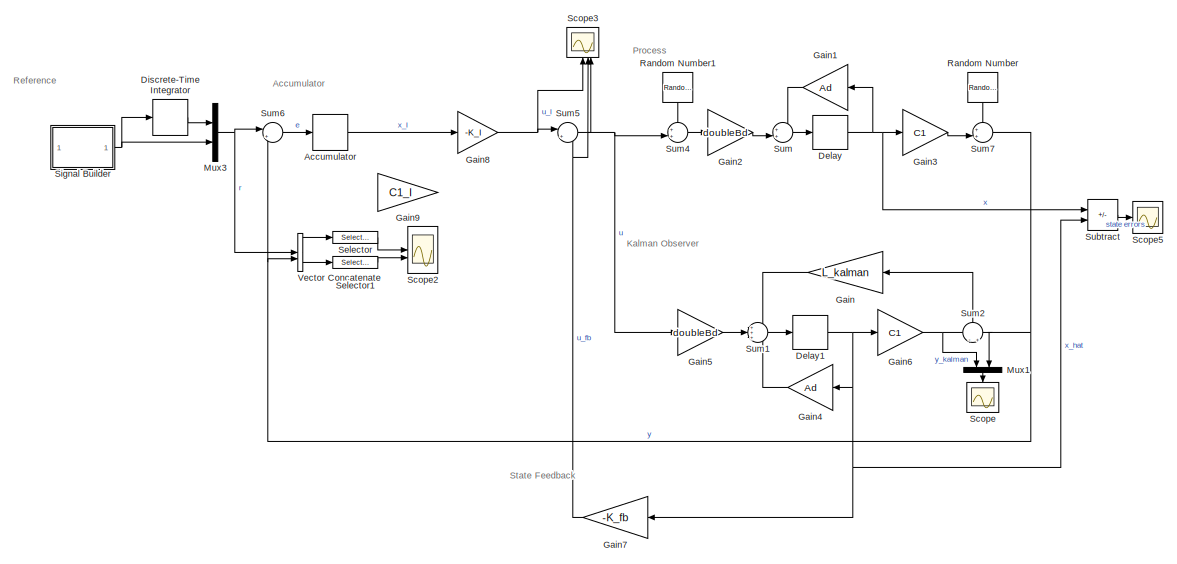
[diagram: root canvas - part 1/2, right side, full height]
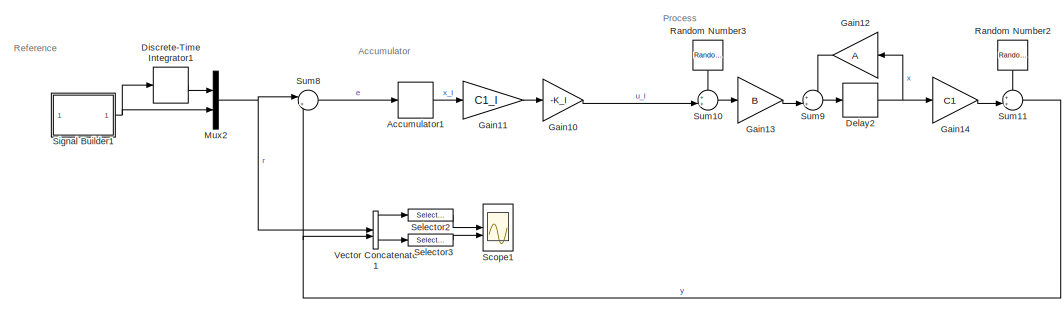
[diagram: root canvas - part 2/2, middle left region]
MODEL slx_e04fc4fe463a
KIND model
CONFIG AbsTol = auto
CONFIG EnableMultiTasking = off
CONFIG FixedStep = Ts
CONFIG MaxStep = auto
CONFIG MinStep = auto
CONFIG RelTol = 1e-3
CONFIG SampleTimeConstraint = Unconstrained
CONFIG SolverName = FixedStepDiscrete
CONFIG StartTime = 0.0
CONFIG StopTime = 2
BLOCK [DiscreteIntegrator] Accumulator
  Commented = on
  ICPrevOutput = DiscIntNeverNeededParam
  ICPrevScaledInput = DiscIntNeverNeededParam
  InitialConditionSetting = Auto
  IntegratorMethod = Accumulation: Forward Euler
  SampleTime = -1
BLOCK [DiscreteIntegrator] Accumulator1
  ICPrevOutput = DiscIntNeverNeededParam
  ICPrevScaledInput = DiscIntNeverNeededParam
  InitialConditionSetting = Auto
  IntegratorMethod = Accumulation: Forward Euler
  SampleTime = -1
BLOCK [Delay] Delay
  Commented = on
  DelayLength = 1
  InitialCondition = x0
  InputPortMap = u0
BLOCK [Delay] Delay1
  Commented = on
  DelayLength = 1
  InputPortMap = u0
BLOCK [Delay] Delay2
  DelayLength = 1
  InitialCondition = x0
  InputPortMap = u0
BLOCK [DiscreteIntegrator] Discrete-Time Integrator
  Commented = on
  ICPrevOutput = DiscIntNeverNeededParam
  ICPrevScaledInput = DiscIntNeverNeededParam
  InitialConditionSetting = Auto
  NameLocation = top
  SampleTime = -1
BLOCK [DiscreteIntegrator] Discrete-Time Integrator1
  ICPrevOutput = DiscIntNeverNeededParam
  ICPrevScaledInput = DiscIntNeverNeededParam
  InitialConditionSetting = Auto
  NameLocation = top
  SampleTime = -1
BLOCK [Gain] Gain
  Commented = on
  Gain = L_kalman
  Multiplication = Matrix(K*u)
  NameLocation = top
BLOCK [Gain] Gain1
  Commented = on
  Gain = Ad
  Multiplication = Matrix(K*u)
  NameLocation = top
BLOCK [Gain] Gain10
  Gain = -K_I
  Multiplication = Matrix(K*u)
BLOCK [Gain] Gain11
  Gain = C1_I
  Multiplication = Matrix(K*u)
BLOCK [Gain] Gain12
  Gain = A
  Multiplication = Matrix(K*u)
  NameLocation = top
BLOCK [Gain] Gain13
  Gain = B
  Multiplication = Matrix(K*u)
BLOCK [Gain] Gain14
  Gain = C1
  Multiplication = Matrix(K*u)
BLOCK [Gain] Gain2
  Commented = on
  Gain = doubleBd
  Multiplication = Matrix(K*u)
BLOCK [Gain] Gain3
  Commented = on
  Gain = C1
  Multiplication = Matrix(K*u)
BLOCK [Gain] Gain4
  Commented = on
  Gain = Ad
  Multiplication = Matrix(K*u)
  NameLocation = top
BLOCK [Gain] Gain5
  Commented = on
  Gain = doubleBd
  Multiplication = Matrix(K*u)
BLOCK [Gain] Gain6
  Commented = on
  Gain = C1
  Multiplication = Matrix(K*u)
BLOCK [Gain] Gain7
  Commented = on
  Gain = -K_fb
  Multiplication = Matrix(K*u)
  NameLocation = top
BLOCK [Gain] Gain8
  Commented = on
  Gain = -K_I
  Multiplication = Matrix(K*u)
BLOCK [Gain] Gain9
  Commented = on
  Gain = C1_I
  Multiplication = Matrix(K*u)
BLOCK [Mux] Mux1
  Commented = on
  DisplayOption = bar
  Inputs = 2
  NameLocation = left
BLOCK [Mux] Mux2
  DisplayOption = bar
  Inputs = 2
BLOCK [Mux] Mux3
  Commented = on
  DisplayOption = bar
  Inputs = 2
BLOCK [RandomNumber] Random Number
  Commented = on
  NameLocation = left
  SampleTime = Ts
  Variance = [sigma2_phi2 sigma2_w2]
BLOCK [RandomNumber] Random Number1
  Commented = on
  NameLocation = left
  SampleTime = Ts
  Variance = [sigma2_va,sigma2_Te]
BLOCK [RandomNumber] Random Number2
  NameLocation = left
  SampleTime = Ts
  Variance = [sigma2_phi2 sigma2_w2]
BLOCK [RandomNumber] Random Number3
  NameLocation = left
  SampleTime = Ts
  Variance = [sigma2_va,sigma2_Te]
BLOCK [Scope] Scope
  Commented = on
  Floating = off
  NameLocation = left
  NumInputPorts = 1
  ScopeSpecificationString = Simulink.scopes.TimeScopeBlockCfg('CurrentConfiguration', extmgr.ConfigurationSet(extmgr.Configuration('Core','General UI',true),extmgr.Configuration('Core','Source UI',true),extmgr.Configuration('Sources','WiredSimulink',true),extmgr.Configuration('Visuals','Time Domain',true,'SerializedDisplays',{struct('MinYLimReal','-14932418009583065440801819874999957739420619228393399037544065502475583173338...<+3556ch>
BLOCK [Scope] Scope1
  Floating = off
  NameLocation = top
  NumInputPorts = 2
  ScopeSpecificationString = Simulink.scopes.TimeScopeBlockCfg('CurrentConfiguration', extmgr.ConfigurationSet(extmgr.Configuration('Core','General UI',true),extmgr.Configuration('Core','Source UI',true),extmgr.Configuration('Sources','WiredSimulink',true,'DataLoggingVariableName','ScopeData1'),extmgr.Configuration('Visuals','Time Domain',true,'SerializedDisplays',{struct('MinYLimReal','-86054447557735137852687500800822599792...<+4208ch>
BLOCK [Scope] Scope2
  Commented = on
  Floating = off
  NameLocation = top
  NumInputPorts = 2
  ScopeSpecificationString = Simulink.scopes.TimeScopeBlockCfg('CurrentConfiguration', extmgr.ConfigurationSet(extmgr.Configuration('Core','General UI',true),extmgr.Configuration('Core','Source UI',true),extmgr.Configuration('Sources','WiredSimulink',true,'DataLoggingVariableName','ScopeData1'),extmgr.Configuration('Visuals','Time Domain',true,'SerializedDisplays',{struct('MinYLimReal','-11312512301740827295568749001204855097...<+4192ch>
BLOCK [Scope] Scope3
  Commented = on
  Floating = off
  NameLocation = right
  NumInputPorts = 3
  ScopeSpecificationString = Simulink.scopes.TimeScopeBlockCfg('CurrentConfiguration', extmgr.ConfigurationSet(extmgr.Configuration('Core','General UI',true),extmgr.Configuration('Core','Source UI',true),extmgr.Configuration('Sources','WiredSimulink',true,'DataLoggingVariableName','ScopeData3'),extmgr.Configuration('Visuals','Time Domain',true,'SerializedDisplays',{struct('MinYLimReal','-0.34203','MaxYLimReal','3.07826','YLab...<+3045ch>
BLOCK [Scope] Scope5
  Commented = on
  Floating = off
  NumInputPorts = 1
  ScopeSpecificationString = Simulink.scopes.TimeScopeBlockCfg('CurrentConfiguration', extmgr.ConfigurationSet(extmgr.Configuration('Core','General UI',true),extmgr.Configuration('Core','Source UI',true),extmgr.Configuration('Sources','WiredSimulink',true,'DataLoggingVariableName','ScopeData5'),extmgr.Configuration('Visuals','Time Domain',true,'SerializedDisplays',{struct('MinYLimReal','-1.00000','MaxYLimReal','1.00000','YLab...<+1627ch>
BLOCK [Selector] Selector
  Commented = on
  IndexOptions = Index vector (dialog)
  Indices = [1 3]
  InputPortWidth = 4
  NameLocation = top
  OutputSizes = 1
BLOCK [Selector] Selector1
  Commented = on
  IndexOptions = Index vector (dialog)
  Indices = [2 4]
  InputPortWidth = 4
  OutputSizes = 1
BLOCK [Selector] Selector2
  IndexOptions = Index vector (dialog)
  Indices = [1 3]
  InputPortWidth = 4
  NameLocation = top
  OutputSizes = 1
BLOCK [Selector] Selector3
  IndexOptions = Index vector (dialog)
  Indices = [2 4]
  InputPortWidth = 4
  OutputSizes = 1
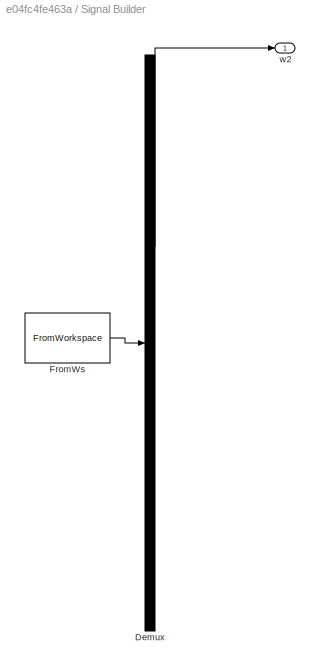
BLOCK [SubSystem] Signal Builder
  ClipboardFcn = sigbuilder_block('clipboard');
  CloseFcn = sigbuilder_block('close');
  Commented = on
  ContinueFcn = sigbuilder_block('continue');
  CopyFcn = sigbuilder_block('copy');
  DeleteFcn = sigbuilder_block('delete');
  LoadFcn = sigbuilder_block('load');
  MaskHideContents = on
  ModelCloseFcn = sigbuilder_block('modelClose');
  NameChangeFcn = sigbuilder_block('namechange');
  OpenFcn = sigbuilder_block('open',[583 238 876 624 ]);
  PauseFcn = sigbuilder_block('pause');
  PreSaveFcn = sigbuilder_block('preSave');
  StartFcn = sigbuilder_block('start');
  StopFcn = sigbuilder_block('stop');
  Tag = STV Subsys
BLOCK [Demux] Signal Builder/Demux
  DisplayOption = none
  Outputs = 1
  Tag = STV Demux
BLOCK [FromWorkspace] Signal Builder/FromWs
  Tag = STV FromWs
  VariableName = tuvar
BLOCK [Outport] Signal Builder/w2
  Tag = STV Outport
  VectorParamsAs1DForOutWhenUnconnected = off
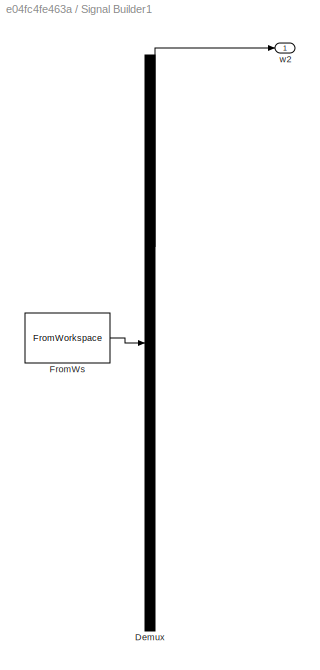
BLOCK [SubSystem] Signal Builder1
  ClipboardFcn = sigbuilder_block('clipboard');
  CloseFcn = sigbuilder_block('close');
  ContinueFcn = sigbuilder_block('continue');
  CopyFcn = sigbuilder_block('copy');
  DeleteFcn = sigbuilder_block('delete');
  LoadFcn = sigbuilder_block('load');
  MaskHideContents = on
  ModelCloseFcn = sigbuilder_block('modelClose');
  NameChangeFcn = sigbuilder_block('namechange');
  OpenFcn = sigbuilder_block('open',[366 204 682 468 ]);
  PauseFcn = sigbuilder_block('pause');
  PreSaveFcn = sigbuilder_block('preSave');
  StartFcn = sigbuilder_block('start');
  StopFcn = sigbuilder_block('stop');
  Tag = STV Subsys
BLOCK [Demux] Signal Builder1/Demux
  DisplayOption = none
  Outputs = 1
  Tag = STV Demux
BLOCK [FromWorkspace] Signal Builder1/FromWs
  Tag = STV FromWs
  VariableName = tuvar
BLOCK [Outport] Signal Builder1/w2
  Tag = STV Outport
  VectorParamsAs1DForOutWhenUnconnected = off
BLOCK [Sum] Subtract
  Commented = on
  IconShape = rectangular
  Inputs = +-
BLOCK [Sum] Sum
  Commented = on
  Inputs = ++|
BLOCK [Sum] Sum1
  Commented = on
  Inputs = +++
BLOCK [Sum] Sum10
  Inputs = ++|
BLOCK [Sum] Sum11
  Inputs = ++|
BLOCK [Sum] Sum2
  Commented = on
  Inputs = -|+
  NameLocation = right
BLOCK [Sum] Sum4
  Commented = on
  Inputs = ++|
BLOCK [Sum] Sum5
  Commented = on
  Inputs = |++
BLOCK [Sum] Sum6
  Commented = on
  Inputs = |+-
BLOCK [Sum] Sum7
  Commented = on
  Inputs = ++|
BLOCK [Sum] Sum8
  Inputs = |+-
BLOCK [Sum] Sum9
  Inputs = ++|
BLOCK [Concatenate] Vector Concatenate
  Commented = on
  NameLocation = top
BLOCK [Concatenate] Vector Concatenate1
  NameLocation = top
ANNOTATION (root): Accumulator
ANNOTATION (root): Kalman Observer
ANNOTATION (root): Process
ANNOTATION (root): Reference
ANNOTATION (root): State Feedback
LINE Accumulator1:1 -> Gain11:1
LINE Accumulator:1 -> Gain8:1
NET Delay1:1 -> Gain4:1, Gain6:1, Gain7:1, Subtract:2
NET Delay2:1 -> Gain12:1, Gain14:1
NET Delay:1 -> Gain1:1, Gain3:1, Subtract:1
LINE Discrete-Time Integrator1:1 -> Mux2:1
LINE Discrete-Time Integrator:1 -> Mux3:1
LINE Gain10:1 -> Sum10:2
LINE Gain11:1 -> Gain10:1
LINE Gain12:1 -> Sum9:1
LINE Gain13:1 -> Sum9:2
LINE Gain14:1 -> Sum11:2
LINE Gain1:1 -> Sum:1
LINE Gain2:1 -> Sum:2
LINE Gain3:1 -> Sum7:2
LINE Gain4:1 -> Sum1:3
LINE Gain5:1 -> Sum1:2
NET Gain6:1 -> Mux1:1, Sum2:1
NET Gain7:1 -> Scope3:2, Sum5:2
NET Gain8:1 -> Scope3:1, Sum5:1
LINE Gain:1 -> Sum1:1
LINE Mux1:1 -> Scope:1
NET Mux2:1 -> Sum8:1, Vector Concatenate1:1
NET Mux3:1 -> Sum6:1, Vector Concatenate:1
LINE Random Number1:1 -> Sum4:1
LINE Random Number2:1 -> Sum11:1
LINE Random Number3:1 -> Sum10:1
LINE Random Number:1 -> Sum7:1
LINE Selector1:1 -> Scope2:2
LINE Selector2:1 -> Scope1:1
LINE Selector3:1 -> Scope1:2
LINE Selector:1 -> Scope2:1
NET Signal Builder1:1 -> Discrete-Time Integrator1:1, Mux2:2
NET Signal Builder:1 -> Discrete-Time Integrator:1, Mux3:2
LINE Subtract:1 -> Scope5:1
LINE Sum10:1 -> Gain13:1
NET Sum11:1 -> Sum8:2, Vector Concatenate1:2
LINE Sum1:1 -> Delay1:1
LINE Sum2:1 -> Gain:1
LINE Sum4:1 -> Gain2:1
NET Sum5:1 -> Gain5:1, Scope3:3, Sum4:2
LINE Sum6:1 -> Accumulator:1
NET Sum7:1 -> Mux1:2, Sum2:2, Sum6:2, Vector Concatenate:2
LINE Sum8:1 -> Accumulator1:1
LINE Sum9:1 -> Delay2:1
LINE Sum:1 -> Delay:1
NET Vector Concatenate1:1 -> Selector2:1, Selector3:1
NET Vector Concatenate:1 -> Selector1:1, Selector:1
note: NET lines group one-source signal fan-out (src -> all destinations, sorted); 1:1 wires keep LINE
